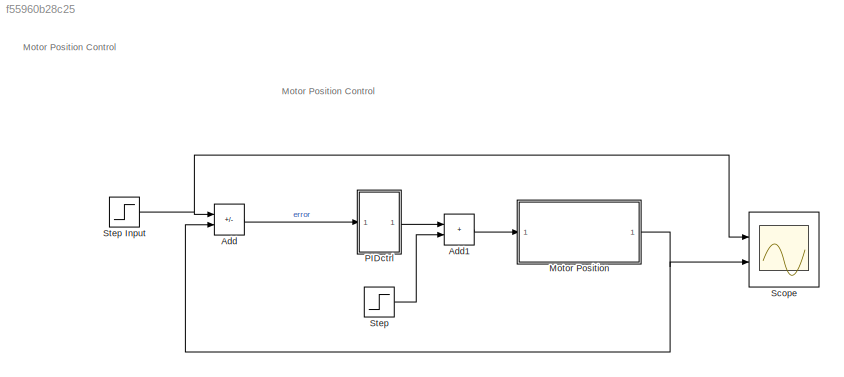
MODEL slx_f55960b28c25
KIND model
CONFIG AbsTol = auto
CONFIG EnableMultiTasking = off
CONFIG FixedStep = auto
CONFIG MaxStep = auto
CONFIG MinStep = auto
CONFIG RelTol = 1e-3
CONFIG SampleTimeConstraint = Unconstrained
CONFIG SolverName = VariableStepAuto
CONFIG StartTime = 0.0
CONFIG StopTime = 0.2
BLOCK [Sum] Add
  IconShape = rectangular
  Inputs = +-
  Ports = [2, 1]
BLOCK [Sum] Add1
  IconShape = rectangular
  Ports = [2, 1]
BLOCK [ModelReference] Motor Position 
  ModelNameDialog = Motor_Position
  ModelReferenceVersion = 1.3
  Ports = [1, 1]
BLOCK [ModelReference] PIDctrl
  ModelNameDialog = PIDctrl
  ModelReferenceVersion = 1.9
  Ports = [1, 1]
BLOCK [Scope] Scope
  Floating = off
  NumInputPorts = 2
  Ports = [2]
  ScopeSpecificationString = Simulink.scopes.TimeScopeBlockCfg('CurrentConfiguration', extmgr.ConfigurationSet(extmgr.Configuration('Core','General UI',true),extmgr.Configuration('Core','Source UI',true),extmgr.Configuration('Sources','WiredSimulink',true),extmgr.Configuration('Visuals','Time Domain',true,'SerializedDisplays',{struct('MinYLimReal','-0.21541','MaxYLimReal','1.93865','YLabelReal','','MinYLimMag','0.00000','MaxY...<+1447ch>
BLOCK [Step] Step
  SampleTime = 0
BLOCK [Step] Step Input
  SampleTime = 0
  Time = 0
ANNOTATION (root): Motor Position Control
LINE Add1:1 -> Motor Position :1
LINE Add:1 -> PIDctrl:1
NET Motor Position :1 -> Add:2, Scope:2
LINE PIDctrl:1 -> Add1:1
NET Step Input:1 -> Add:1, Scope:1
LINE Step:1 -> Add1:2
note: NET lines group one-source signal fan-out (src -> all destinations, sorted); 1:1 wires keep LINE
